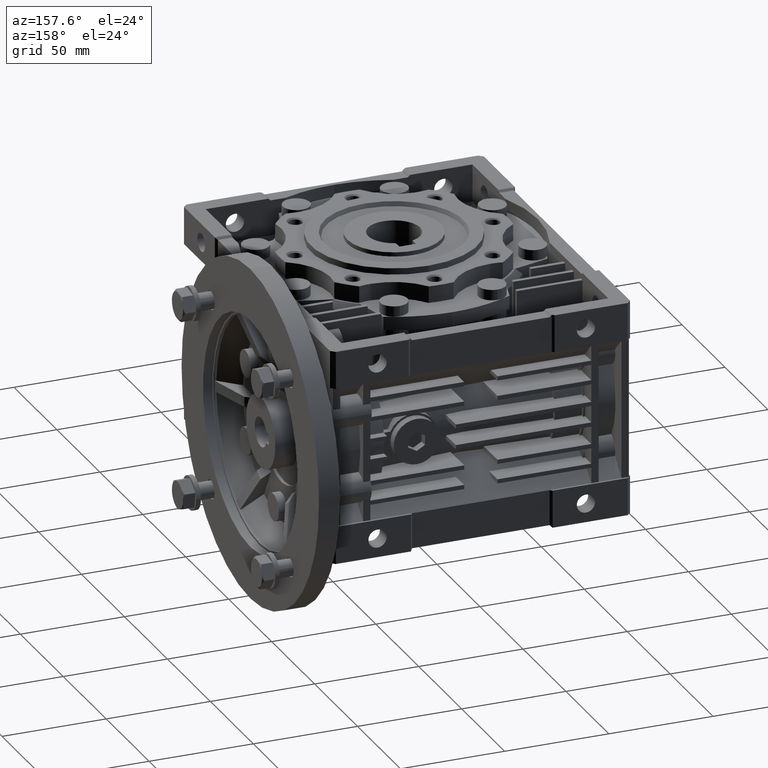
[diagram: clean part render]
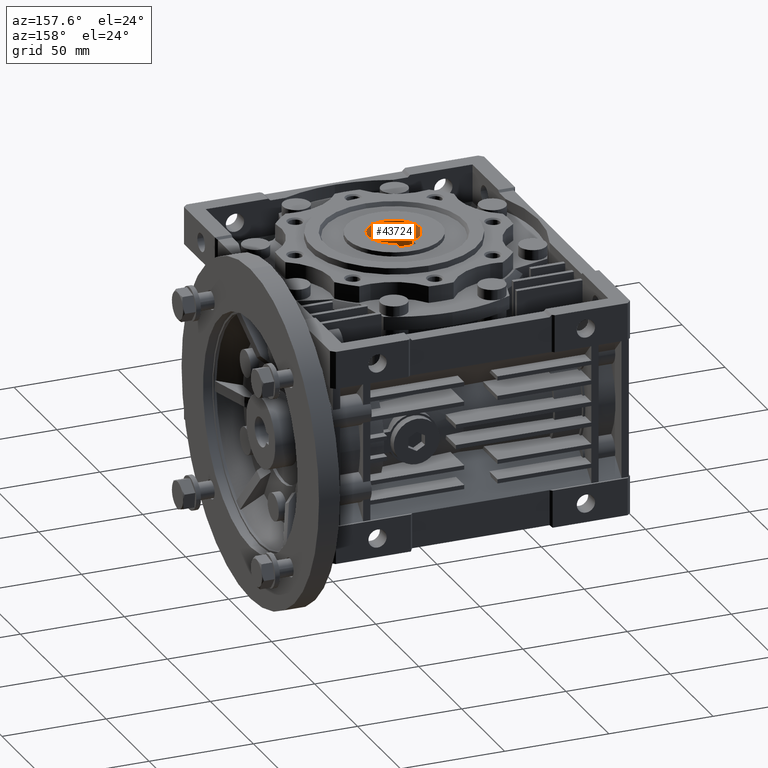
[diagram: same view with one face highlighted and labeled with its STEP entity id]
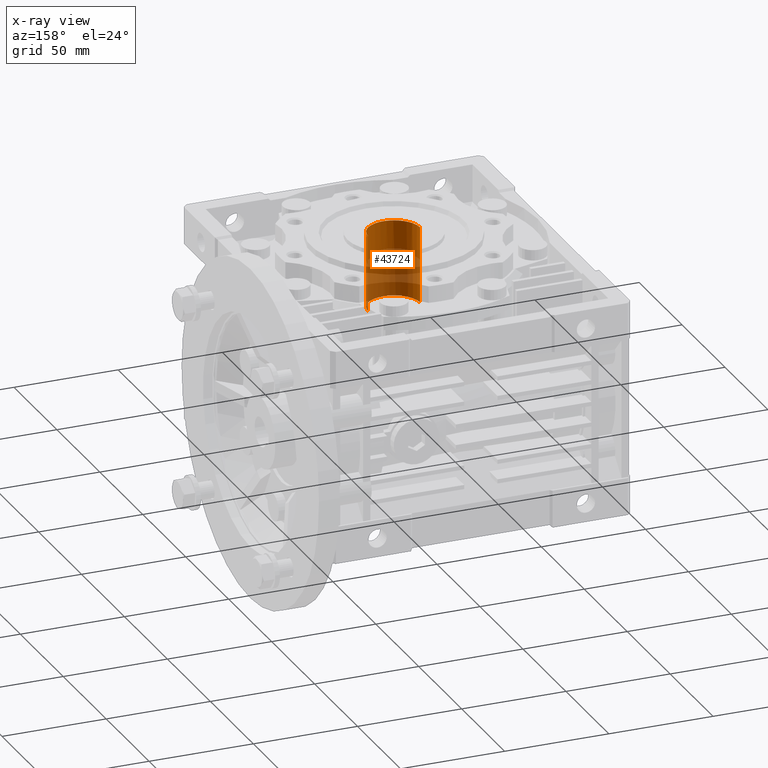
[diagram: x-ray of the same camera — body ghosted, the highlighted face saturated]
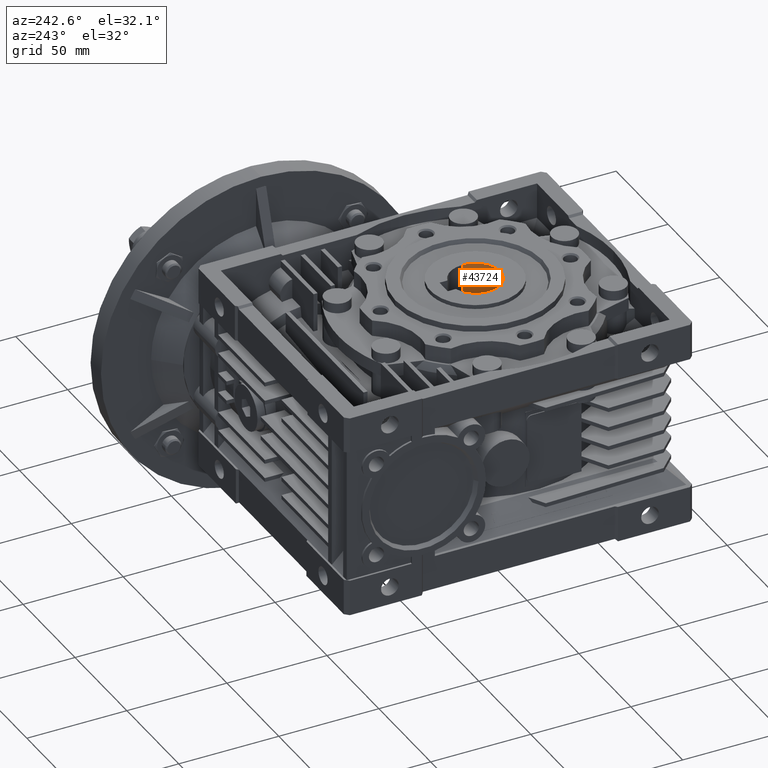
[diagram: same view with one face highlighted and labeled with its STEP entity id]
A machine part, auxiliary view. The second image highlights one B-rep face of the part: STEP entity #43724.
The next image is the same camera in x-ray: the body ghosted, the highlighted face saturated — about 61% of this face is hidden behind the body in this view.
A second angle (auxiliary view) of the same face is appended — the face is thin or edge-on in the first view.
In plain terms, the highlighted cylindrical surface (edge-blend (fillet) strip) has radius 12.5 mm, axis along (0, 0, -1).
Its self-contained STEP definition (entity closure, byte-faithful):
#751 = EDGE_CURVE ( 'NONE', #27138, #1141, #4926, .T. ) ;
#778 = CARTESIAN_POINT ( 'NONE',  ( 12.50000000000000000, 1.530808498934191521E-15, 56.00000000000000000 ) ) ;
#1141 = VERTEX_POINT ( 'NONE', #778 ) ;
#2360 = VECTOR ( 'NONE', #45224, 1000.000000000000000 ) ;
#2725 = CIRCLE ( 'NONE', #40097, 12.50000000000000000 ) ;
#2777 = VERTEX_POINT ( 'NONE', #43170 ) ;
#2865 = EDGE_CURVE ( 'NONE', #46931, #30890, #11989, .T. ) ;
#3063 = ORIENTED_EDGE ( 'NONE', *, *, #47295, .T. ) ;
#3163 = EDGE_CURVE ( 'NONE', #30890, #2777, #2725, .T. ) ;
#3379 = DIRECTION ( 'NONE',  ( 0.000000000000000000, 0.000000000000000000, 1.000000000000000000 ) ) ;
#3775 = ORIENTED_EDGE ( 'NONE', *, *, #751, .T. ) ;
#4926 = CIRCLE ( 'NONE', #22844, 12.50000000000000000 ) ;
#5242 = CARTESIAN_POINT ( 'NONE',  ( 12.50000000000000000, 1.530808498934191521E-15, 56.00000000000000000 ) ) ;
#6572 = ORIENTED_EDGE ( 'NONE', *, *, #2865, .F. ) ;
#6999 = EDGE_CURVE ( 'NONE', #27138, #46931, #27204, .T. ) ;
#7245 = DIRECTION ( 'NONE',  ( -1.000000000000000000, 0.000000000000000000, 0.000000000000000000 ) ) ;
#9029 = DIRECTION ( 'NONE',  ( 0.000000000000000000, 0.000000000000000000, 1.000000000000000000 ) ) ;
#10634 = ORIENTED_EDGE ( 'NONE', *, *, #6999, .F. ) ;
#11989 = CIRCLE ( 'NONE', #42370, 12.50000000000000000 ) ;
#12396 = CARTESIAN_POINT ( 'NONE',  ( -12.50000000000000000, 0.000000000000000000, 19.50000000000000000 ) ) ;
#15800 = DIRECTION ( 'NONE',  ( -1.000000000000000000, 0.000000000000000000, 0.000000000000000000 ) ) ;
#18248 = DIRECTION ( 'NONE',  ( -1.000000000000000000, 0.000000000000000000, 0.000000000000000000 ) ) ;
#20165 = CARTESIAN_POINT ( 'NONE',  ( -12.50000000000000000, 0.000000000000000000, 56.00000000000000000 ) ) ;
#20610 = DIRECTION ( 'NONE',  ( 0.000000000000000000, 0.000000000000000000, -1.000000000000000000 ) ) ;
#21903 = EDGE_LOOP ( 'NONE', ( #3775, #3063, #26906, #6572, #10634 ) ) ;
#21922 = CARTESIAN_POINT ( 'NONE',  ( 0.000000000000000000, 0.000000000000000000, 56.00000000000000000 ) ) ;
#22844 = AXIS2_PLACEMENT_3D ( 'NONE', #21922, #3379, #18248 ) ;
#26906 = ORIENTED_EDGE ( 'NONE', *, *, #3163, .F. ) ;
#27138 = VERTEX_POINT ( 'NONE', #43198 ) ;
#27204 = LINE ( 'NONE', #20165, #2360 ) ;
#27365 = CARTESIAN_POINT ( 'NONE',  ( 0.000000000000000000, -12.50000000000000000, 19.50000000000000000 ) ) ;
#27565 = CARTESIAN_POINT ( 'NONE',  ( 0.000000000000000000, 0.000000000000000000, 19.50000000000000000 ) ) ;
#28140 = LINE ( 'NONE', #5242, #47948 ) ;
#30890 = VERTEX_POINT ( 'NONE', #27365 ) ;
#31176 = DIRECTION ( 'NONE',  ( 0.000000000000000000, 0.000000000000000000, 1.000000000000000000 ) ) ;
#33122 = CARTESIAN_POINT ( 'NONE',  ( 0.000000000000000000, 0.000000000000000000, 56.00000000000000000 ) ) ;
#33356 = CYLINDRICAL_SURFACE ( 'NONE', #38464, 12.50000000000000000 ) ;
#38464 = AXIS2_PLACEMENT_3D ( 'NONE', #33122, #47905, #7245 ) ;
#38813 = DIRECTION ( 'NONE',  ( -1.000000000000000000, 0.000000000000000000, 0.000000000000000000 ) ) ;
#40097 = AXIS2_PLACEMENT_3D ( 'NONE', #45267, #31176, #15800 ) ;
#42370 = AXIS2_PLACEMENT_3D ( 'NONE', #27565, #9029, #38813 ) ;
#43170 = CARTESIAN_POINT ( 'NONE',  ( 12.50000000000000000, 1.530808498934191521E-15, 19.50000000000000000 ) ) ;
#43198 = CARTESIAN_POINT ( 'NONE',  ( -12.50000000000000000, 0.000000000000000000, 56.00000000000000000 ) ) ;
#43724 = ADVANCED_FACE ( 'NONE', ( #44289 ), #33356, .F. ) ;
#44289 = FACE_OUTER_BOUND ( 'NONE', #21903, .T. ) ;
#45224 = DIRECTION ( 'NONE',  ( 0.000000000000000000, 0.000000000000000000, -1.000000000000000000 ) ) ;
#45267 = CARTESIAN_POINT ( 'NONE',  ( 0.000000000000000000, 0.000000000000000000, 19.50000000000000000 ) ) ;
#46931 = VERTEX_POINT ( 'NONE', #12396 ) ;
#47295 = EDGE_CURVE ( 'NONE', #1141, #2777, #28140, .T. ) ;
#47905 = DIRECTION ( 'NONE',  ( 0.000000000000000000, 0.000000000000000000, -1.000000000000000000 ) ) ;
#47948 = VECTOR ( 'NONE', #20610, 1000.000000000000000 ) ;